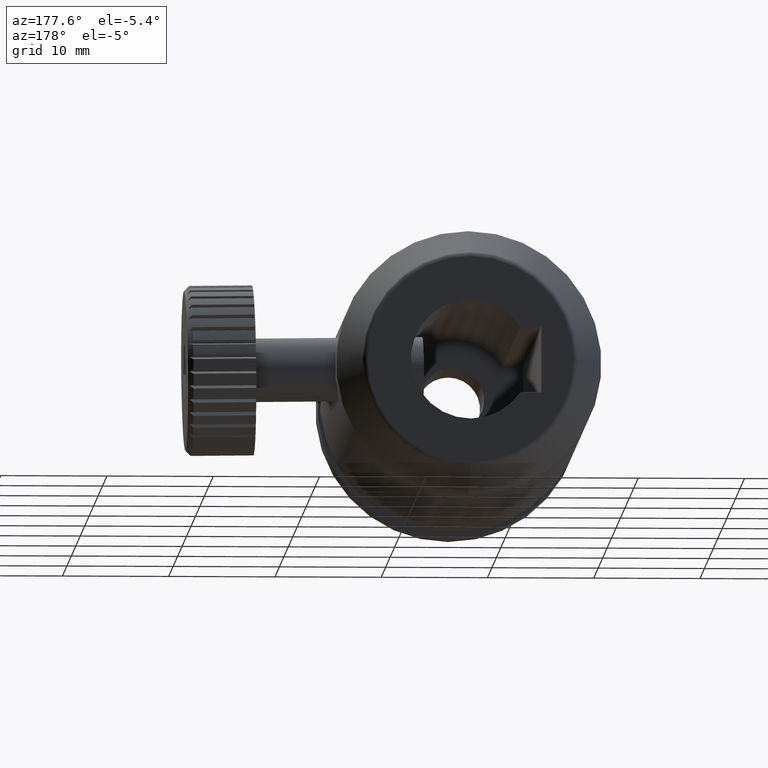
[diagram: clean part render]
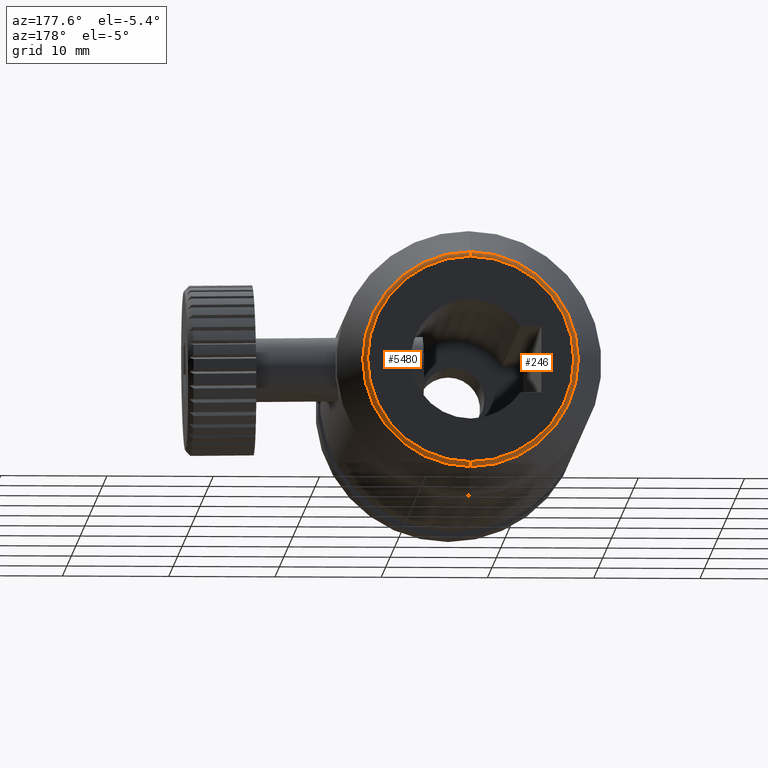
[diagram: same view with one multi-face feature highlighted, each face labeled with its STEP entity id]
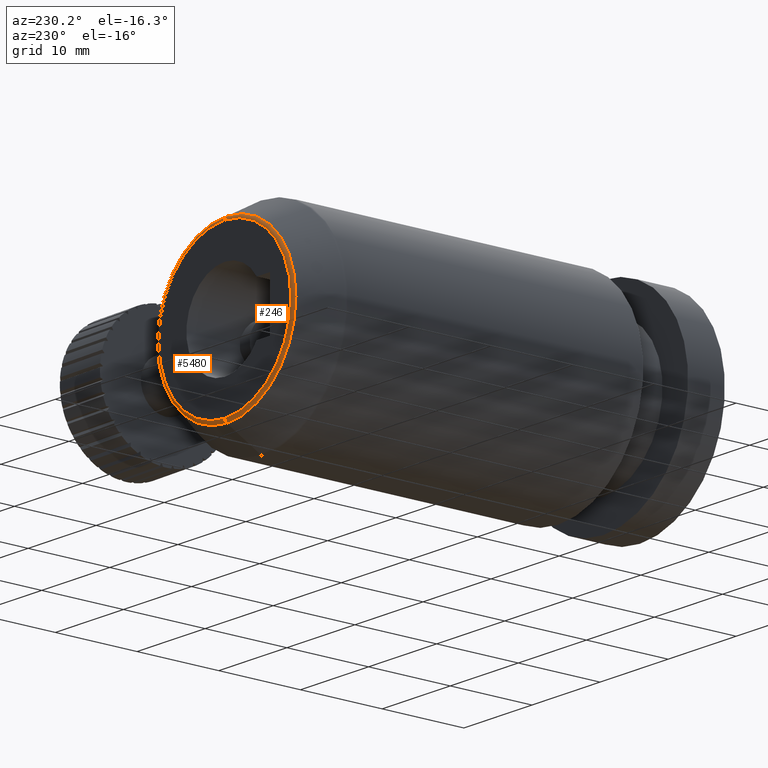
[diagram: same view with one multi-face feature highlighted, each face labeled with its STEP entity id]
A machine part, auxiliary view. The highlighted faces form ONE feature: a constant-radius fillet chain: 2 tangent blend faces with common blend radius 0.5 mm. The faces share edges in the B-rep.
A second angle (auxiliary view) of the same feature is appended — it is thin or edge-on in the first view.
Their STEP definitions:
[1] entity #246 (Torus):
#61 = AXIS2_PLACEMENT_3D ( 'NONE', #1384, #4430, #4881 ) ;
#246 = ADVANCED_FACE ( 'NONE', ( #2108 ), #4245, .T. ) ;
#285 = CARTESIAN_POINT ( 'NONE',  ( -5.265086014860968600, 35.31499106419347100, -7.705798325500804700 ) ) ;
#454 = CIRCLE ( 'NONE', #4287, 0.4999999999993481900 ) ;
#603 = ORIENTED_EDGE ( 'NONE', *, *, #3672, .F. ) ;
#822 = ORIENTED_EDGE ( 'NONE', *, *, #2071, .F. ) ;
#886 = CIRCLE ( 'NONE', #61, 0.4999999999993481900 ) ;
#909 = EDGE_CURVE ( 'NONE', #4470, #2834, #886, .T. ) ;
#1030 = CIRCLE ( 'NONE', #5162, 9.705798325500804700 ) ;
#1083 = DIRECTION ( 'NONE',  ( 1.000000000000000000, 0.0000000000000000000, -1.224646799147353200E-016 ) ) ;
#1384 = CARTESIAN_POINT ( 'NONE',  ( -5.265086014860968600, 34.81499106419412500, -7.705798325500802900 ) ) ;
#1407 = CARTESIAN_POINT ( 'NONE',  ( -5.265086014860968600, 34.81499106419412500, 2.000000000000000000 ) ) ;
#1523 = CARTESIAN_POINT ( 'NONE',  ( -5.265086014860968600, 35.05781252978279400, 2.000000000000000000 ) ) ;
#1606 = DIRECTION ( 'NONE',  ( 0.0000000000000000000, 0.0000000000000000000, -1.000000000000000000 ) ) ;
#1646 = EDGE_CURVE ( 'NONE', #1927, #4470, #1030, .T. ) ;
#1874 = DIRECTION ( 'NONE',  ( 0.0000000000000000000, 0.0000000000000000000, -1.000000000000000000 ) ) ;
#1894 = DIRECTION ( 'NONE',  ( -0.0000000000000000000, -1.000000000000000000, -0.0000000000000000000 ) ) ;
#1927 = VERTEX_POINT ( 'NONE', #3723 ) ;
#1985 = ORIENTED_EDGE ( 'NONE', *, *, #1646, .T. ) ;
#2071 = EDGE_CURVE ( 'NONE', #1927, #3490, #454, .T. ) ;
#2108 = FACE_OUTER_BOUND ( 'NONE', #4229, .T. ) ;
#2136 = AXIS2_PLACEMENT_3D ( 'NONE', #1407, #3166, #4467 ) ;
#2834 = VERTEX_POINT ( 'NONE', #3713 ) ;
#3166 = DIRECTION ( 'NONE',  ( -0.0000000000000000000, -1.000000000000000000, -0.0000000000000000000 ) ) ;
#3471 = CARTESIAN_POINT ( 'NONE',  ( -5.265086014860968600, 35.05781252978279400, 12.14287696356118600 ) ) ;
#3490 = VERTEX_POINT ( 'NONE', #3471 ) ;
#3672 = EDGE_CURVE ( 'NONE', #3490, #2834, #4313, .T. ) ;
#3713 = CARTESIAN_POINT ( 'NONE',  ( -5.265086014860968600, 35.05781252978279400, -8.142876963561185700 ) ) ;
#3720 = DIRECTION ( 'NONE',  ( 0.0000000000000000000, 0.0000000000000000000, -1.000000000000000000 ) ) ;
#3723 = CARTESIAN_POINT ( 'NONE',  ( -5.265086014860967700, 35.31499106419347100, 11.70579832550080500 ) ) ;
#4229 = EDGE_LOOP ( 'NONE', ( #822, #1985, #4460, #603 ) ) ;
#4245 = TOROIDAL_SURFACE ( 'NONE', #2136, 9.705798325500802900, 0.4999999999993481900 ) ;
#4287 = AXIS2_PLACEMENT_3D ( 'NONE', #5437, #1083, #3720 ) ;
#4313 = CIRCLE ( 'NONE', #5285, 10.14287696356118600 ) ;
#4430 = DIRECTION ( 'NONE',  ( -1.000000000000000000, 0.0000000000000000000, 0.0000000000000000000 ) ) ;
#4460 = ORIENTED_EDGE ( 'NONE', *, *, #909, .T. ) ;
#4467 = DIRECTION ( 'NONE',  ( 0.0000000000000000000, 0.0000000000000000000, -1.000000000000000000 ) ) ;
#4470 = VERTEX_POINT ( 'NONE', #285 ) ;
#4551 = CARTESIAN_POINT ( 'NONE',  ( -5.265086014860968600, 35.31499106419347100, 2.000000000000000000 ) ) ;
#4881 = DIRECTION ( 'NONE',  ( 0.0000000000000000000, 0.0000000000000000000, 1.000000000000000000 ) ) ;
#5162 = AXIS2_PLACEMENT_3D ( 'NONE', #4551, #5573, #1606 ) ;
#5285 = AXIS2_PLACEMENT_3D ( 'NONE', #1523, #1894, #1874 ) ;
#5437 = CARTESIAN_POINT ( 'NONE',  ( -5.265086014860967700, 34.81499106419412500, 11.70579832550080300 ) ) ;
#5573 = DIRECTION ( 'NONE',  ( -0.0000000000000000000, -1.000000000000000000, -0.0000000000000000000 ) ) ;
[2] entity #5480 (Torus):
#61 = AXIS2_PLACEMENT_3D ( 'NONE', #1384, #4430, #4881 ) ;
#285 = CARTESIAN_POINT ( 'NONE',  ( -5.265086014860968600, 35.31499106419347100, -7.705798325500804700 ) ) ;
#403 = DIRECTION ( 'NONE',  ( 0.0000000000000000000, 0.0000000000000000000, -1.000000000000000000 ) ) ;
#454 = CIRCLE ( 'NONE', #4287, 0.4999999999993481900 ) ;
#630 = DIRECTION ( 'NONE',  ( -0.0000000000000000000, -1.000000000000000000, -0.0000000000000000000 ) ) ;
#815 = EDGE_LOOP ( 'NONE', ( #2949, #5128, #2535, #3936 ) ) ;
#886 = CIRCLE ( 'NONE', #61, 0.4999999999993481900 ) ;
#909 = EDGE_CURVE ( 'NONE', #4470, #2834, #886, .T. ) ;
#1083 = DIRECTION ( 'NONE',  ( 1.000000000000000000, 0.0000000000000000000, -1.224646799147353200E-016 ) ) ;
#1384 = CARTESIAN_POINT ( 'NONE',  ( -5.265086014860968600, 34.81499106419412500, -7.705798325500802900 ) ) ;
#1633 = CARTESIAN_POINT ( 'NONE',  ( -5.265086014860968600, 35.31499106419347100, 2.000000000000000000 ) ) ;
#1849 = CIRCLE ( 'NONE', #2233, 9.705798325500804700 ) ;
#1927 = VERTEX_POINT ( 'NONE', #3723 ) ;
#2071 = EDGE_CURVE ( 'NONE', #1927, #3490, #454, .T. ) ;
#2103 = CIRCLE ( 'NONE', #4671, 10.14287696356118600 ) ;
#2233 = AXIS2_PLACEMENT_3D ( 'NONE', #1633, #4693, #3390 ) ;
#2535 = ORIENTED_EDGE ( 'NONE', *, *, #4028, .F. ) ;
#2834 = VERTEX_POINT ( 'NONE', #3713 ) ;
#2949 = ORIENTED_EDGE ( 'NONE', *, *, #3436, .T. ) ;
#2993 = CARTESIAN_POINT ( 'NONE',  ( -5.265086014860968600, 35.05781252978279400, 2.000000000000000000 ) ) ;
#3322 = DIRECTION ( 'NONE',  ( 0.0000000000000000000, 0.0000000000000000000, -1.000000000000000000 ) ) ;
#3390 = DIRECTION ( 'NONE',  ( 0.0000000000000000000, 0.0000000000000000000, -1.000000000000000000 ) ) ;
#3407 = FACE_OUTER_BOUND ( 'NONE', #815, .T. ) ;
#3436 = EDGE_CURVE ( 'NONE', #4470, #1927, #1849, .T. ) ;
#3471 = CARTESIAN_POINT ( 'NONE',  ( -5.265086014860968600, 35.05781252978279400, 12.14287696356118600 ) ) ;
#3490 = VERTEX_POINT ( 'NONE', #3471 ) ;
#3713 = CARTESIAN_POINT ( 'NONE',  ( -5.265086014860968600, 35.05781252978279400, -8.142876963561185700 ) ) ;
#3720 = DIRECTION ( 'NONE',  ( 0.0000000000000000000, 0.0000000000000000000, -1.000000000000000000 ) ) ;
#3723 = CARTESIAN_POINT ( 'NONE',  ( -5.265086014860967700, 35.31499106419347100, 11.70579832550080500 ) ) ;
#3936 = ORIENTED_EDGE ( 'NONE', *, *, #909, .F. ) ;
#3958 = TOROIDAL_SURFACE ( 'NONE', #4932, 9.705798325500802900, 0.4999999999993481900 ) ;
#4028 = EDGE_CURVE ( 'NONE', #2834, #3490, #2103, .T. ) ;
#4287 = AXIS2_PLACEMENT_3D ( 'NONE', #5437, #1083, #3720 ) ;
#4430 = DIRECTION ( 'NONE',  ( -1.000000000000000000, 0.0000000000000000000, 0.0000000000000000000 ) ) ;
#4470 = VERTEX_POINT ( 'NONE', #285 ) ;
#4671 = AXIS2_PLACEMENT_3D ( 'NONE', #2993, #4703, #403 ) ;
#4693 = DIRECTION ( 'NONE',  ( -0.0000000000000000000, -1.000000000000000000, -0.0000000000000000000 ) ) ;
#4703 = DIRECTION ( 'NONE',  ( -0.0000000000000000000, -1.000000000000000000, -0.0000000000000000000 ) ) ;
#4881 = DIRECTION ( 'NONE',  ( 0.0000000000000000000, 0.0000000000000000000, 1.000000000000000000 ) ) ;
#4932 = AXIS2_PLACEMENT_3D ( 'NONE', #5036, #630, #3322 ) ;
#5036 = CARTESIAN_POINT ( 'NONE',  ( -5.265086014860968600, 34.81499106419412500, 2.000000000000000000 ) ) ;
#5128 = ORIENTED_EDGE ( 'NONE', *, *, #2071, .T. ) ;
#5437 = CARTESIAN_POINT ( 'NONE',  ( -5.265086014860967700, 34.81499106419412500, 11.70579832550080300 ) ) ;
#5480 = ADVANCED_FACE ( 'NONE', ( #3407 ), #3958, .T. ) ;